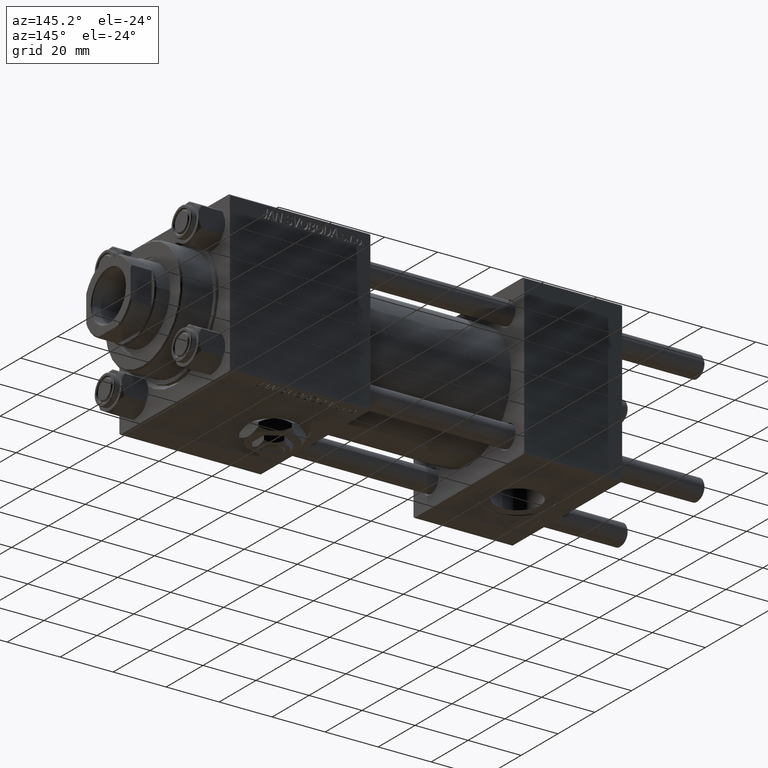
[diagram: clean part render]
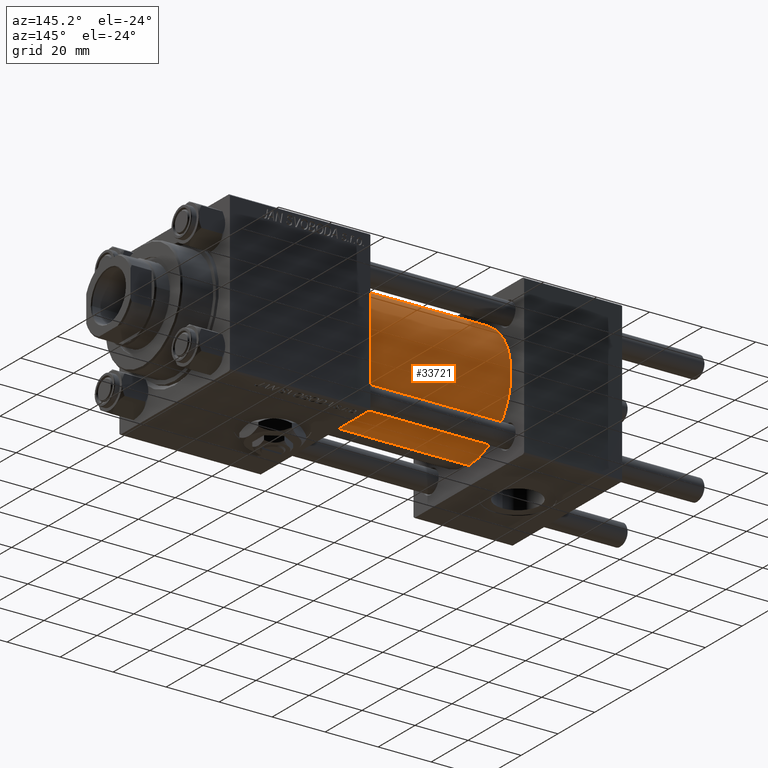
[diagram: same view with one face highlighted and labeled with its STEP entity id]
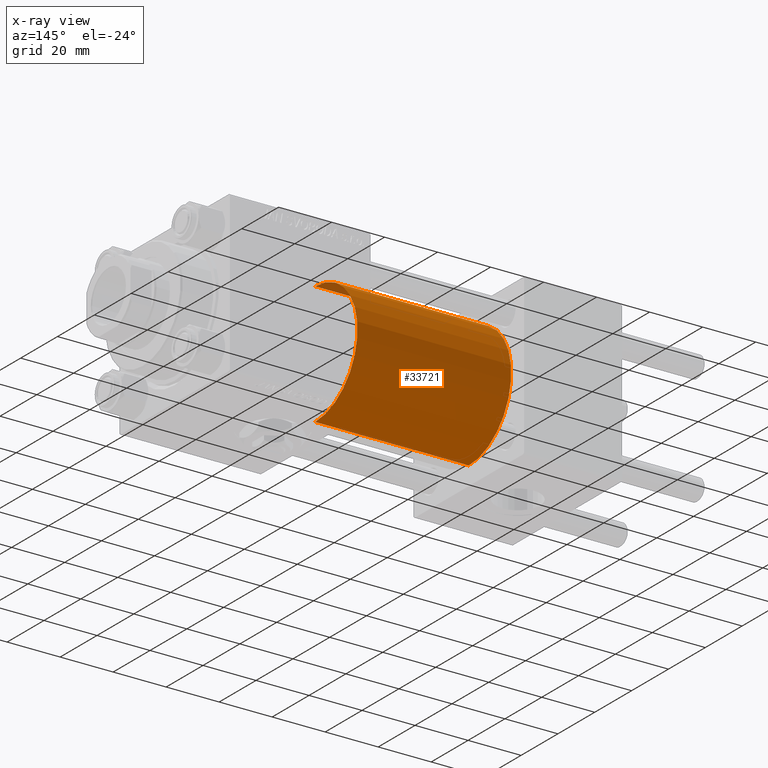
[diagram: x-ray of the same camera — body ghosted, the highlighted face saturated]
A machine part, auxiliary view. The second image highlights one B-rep face of the part: STEP entity #33721.
The next image is the same camera in x-ray: the body ghosted, the highlighted face saturated — about 1% of this face is hidden behind the body in this view.
In plain terms, the highlighted cylindrical surface (partial cylindrical patch) has radius 23 mm, axis along (-1, -0, -0).
Its self-contained STEP definition (entity closure, byte-faithful):
#160 = AXIS2_PLACEMENT_3D ( 'NONE', #7886, #38928, #31120 ) ;
#2747 = DIRECTION ( 'NONE',  ( 0.000000000000000000, 0.000000000000000000, -1.000000000000000000 ) ) ;
#3110 = EDGE_LOOP ( 'NONE', ( #33728, #11322, #3966, #44494 ) ) ;
#3174 = CIRCLE ( 'NONE', #12330, 23.00000000000000000 ) ;
#3966 = ORIENTED_EDGE ( 'NONE', *, *, #45144, .T. ) ;
#4980 = CARTESIAN_POINT ( 'NONE',  ( 95.00000000000000000, 2.816687638038911957E-15, -23.00000000000000000 ) ) ;
#6662 = CARTESIAN_POINT ( 'NONE',  ( 95.00000000000000000, 0.000000000000000000, 0.000000000000000000 ) ) ;
#7100 = CYLINDRICAL_SURFACE ( 'NONE', #160, 23.00000000000000000 ) ;
#7886 = CARTESIAN_POINT ( 'NONE',  ( 95.00000000000000000, 0.000000000000000000, 0.000000000000000000 ) ) ;
#8607 = DIRECTION ( 'NONE',  ( 1.000000000000000000, -0.000000000000000000, 0.000000000000000000 ) ) ;
#8750 = VERTEX_POINT ( 'NONE', #50134 ) ;
#8897 = VERTEX_POINT ( 'NONE', #36279 ) ;
#11322 = ORIENTED_EDGE ( 'NONE', *, *, #12595, .T. ) ;
#12253 = CARTESIAN_POINT ( 'NONE',  ( 37.00000000000000000, 0.000000000000000000, 0.000000000000000000 ) ) ;
#12330 = AXIS2_PLACEMENT_3D ( 'NONE', #12253, #8607, #15659 ) ;
#12595 = EDGE_CURVE ( 'NONE', #8750, #43624, #44118, .T. ) ;
#14474 = CARTESIAN_POINT ( 'NONE',  ( 37.00000000000000000, 2.816687638038911957E-15, -23.00000000000000000 ) ) ;
#15521 = EDGE_CURVE ( 'NONE', #8897, #29635, #33706, .T. ) ;
#15659 = DIRECTION ( 'NONE',  ( 0.000000000000000000, 0.000000000000000000, 1.000000000000000000 ) ) ;
#16974 = DIRECTION ( 'NONE',  ( -1.000000000000000000, -0.000000000000000000, -0.000000000000000000 ) ) ;
#17019 = DIRECTION ( 'NONE',  ( -1.000000000000000000, -0.000000000000000000, -0.000000000000000000 ) ) ;
#18277 = AXIS2_PLACEMENT_3D ( 'NONE', #6662, #22591, #2747 ) ;
#20918 = VECTOR ( 'NONE', #16974, 1000.000000000000000 ) ;
#22591 = DIRECTION ( 'NONE',  ( 1.000000000000000000, 0.000000000000000000, 0.000000000000000000 ) ) ;
#26649 = CARTESIAN_POINT ( 'NONE',  ( 37.00000000000000000, 0.000000000000000000, 23.00000000000000000 ) ) ;
#26954 = FACE_OUTER_BOUND ( 'NONE', #3110, .T. ) ;
#29146 = CIRCLE ( 'NONE', #18277, 23.00000000000000000 ) ;
#29635 = VERTEX_POINT ( 'NONE', #26649 ) ;
#31120 = DIRECTION ( 'NONE',  ( 0.000000000000000000, 0.000000000000000000, 1.000000000000000000 ) ) ;
#33706 = LINE ( 'NONE', #49114, #41306 ) ;
#33721 = ADVANCED_FACE ( 'NONE', ( #26954 ), #7100, .T. ) ;
#33728 = ORIENTED_EDGE ( 'NONE', *, *, #49183, .F. ) ;
#36279 = CARTESIAN_POINT ( 'NONE',  ( 95.00000000000000000, 0.000000000000000000, 23.00000000000000000 ) ) ;
#38928 = DIRECTION ( 'NONE',  ( -1.000000000000000000, -0.000000000000000000, -0.000000000000000000 ) ) ;
#41306 = VECTOR ( 'NONE', #17019, 1000.000000000000000 ) ;
#43624 = VERTEX_POINT ( 'NONE', #14474 ) ;
#44118 = LINE ( 'NONE', #4980, #20918 ) ;
#44494 = ORIENTED_EDGE ( 'NONE', *, *, #15521, .F. ) ;
#45144 = EDGE_CURVE ( 'NONE', #43624, #29635, #3174, .T. ) ;
#49114 = CARTESIAN_POINT ( 'NONE',  ( 95.00000000000000000, 0.000000000000000000, 23.00000000000000000 ) ) ;
#49183 = EDGE_CURVE ( 'NONE', #8750, #8897, #29146, .T. ) ;
#50134 = CARTESIAN_POINT ( 'NONE',  ( 95.00000000000000000, 2.816687638038911957E-15, -23.00000000000000000 ) ) ;